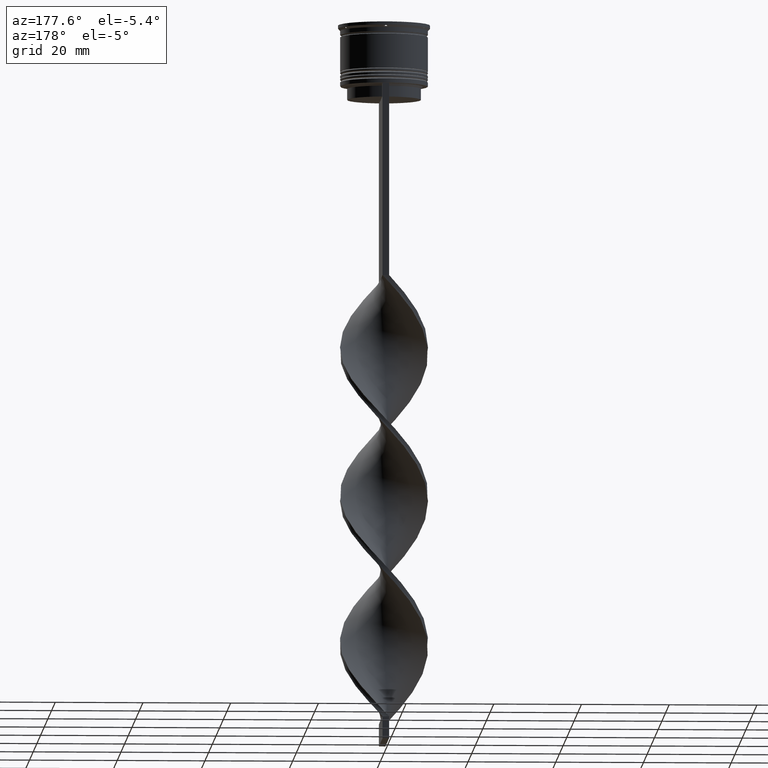
[diagram: clean part render]
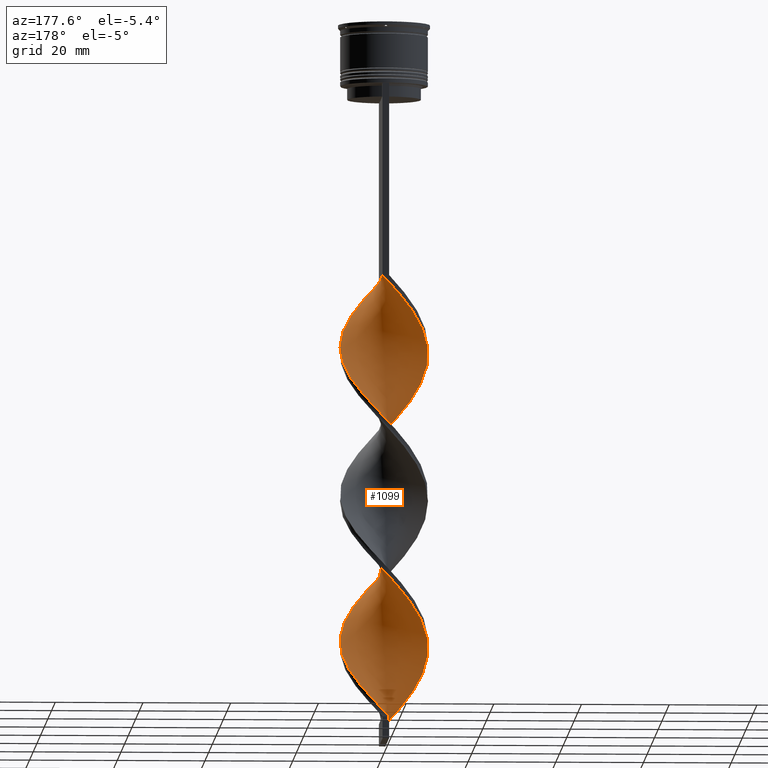
[diagram: same view with one face highlighted and labeled with its STEP entity id]
A machine part, auxiliary view. The second image highlights one B-rep face of the part: STEP entity #1099.
In plain terms, the highlighted face is a freeform B-spline surface patch.
Its self-contained STEP definition (entity closure, byte-faithful):
#14 = CARTESIAN_POINT ( 'NONE',  ( -9.742327908732750785, 2.376877556528111946, -105.1333333333333400 ) ) ;
#33 = CARTESIAN_POINT ( 'NONE',  ( -9.678562416828828674, -2.828220898732835220, -110.7444444444444542 ) ) ;
#36 = CARTESIAN_POINT ( 'NONE',  ( 7.933296209543089006, -6.133947444480539524, -66.97777777777777430 ) ) ;
#55 = CARTESIAN_POINT ( 'NONE',  ( 6.484615268705944402, -7.649331004530123934, -132.0666666666666629 ) ) ;
#84 = CARTESIAN_POINT ( 'NONE',  ( -5.680638183180776402, -8.330891533339581656, -86.05555555555557135 ) ) ;
#99 = CARTESIAN_POINT ( 'NONE',  ( 2.812727608727948247, -9.625542239224740726, -60.24444444444444713 ) ) ;
#102 = CARTESIAN_POINT ( 'NONE',  ( -6.167734941832649476, 7.976995022925432721, -65.85555555555555429 ) ) ;
#117 = CARTESIAN_POINT ( 'NONE',  ( -5.680638183180775513, 8.330891533339592314, -97.27777777777779988 ) ) ;
#121 = CARTESIAN_POINT ( 'NONE',  ( -5.271089777143520116, 8.531008882968830420, -64.73333333333333428 ) ) ;
#127 = CARTESIAN_POINT ( 'NONE',  ( -4.752525523989953982, -8.830402094119154555, -154.5111111111111200 ) ) ;
#139 = CARTESIAN_POINT ( 'NONE',  ( 6.167734941832656581, 7.976995022925434498, -151.1444444444444457 ) ) ;
#147 = CARTESIAN_POINT ( 'NONE',  ( -9.678562416828818016, 2.828220898732843214, -139.9222222222222172 ) ) ;
#165 = CARTESIAN_POINT ( 'NONE',  ( -9.278802417170323835, 3.803462330970839744, -138.8000000000000114 ) ) ;
#171 = CARTESIAN_POINT ( 'NONE',  ( 10.02361530113347854, -0.2993932111503322391, -141.0444444444444514 ) ) ;
#173 = CARTESIAN_POINT ( 'NONE',  ( -9.492508010833708099, -3.400837481082919389, -146.6555555555555657 ) ) ;
#196 = CARTESIAN_POINT ( 'NONE',  ( -9.278802417170330941, -3.803462330970838856, -111.8666666666666742 ) ) ;
#200 = CARTESIAN_POINT ( 'NONE',  ( -1.345506207627238604, 9.937409775451374827, -127.5777777777777828 ) ) ;
#205 = CARTESIAN_POINT ( 'NONE',  ( 0.3010423526567679309, 10.07882817644926376, -157.8777777777777942 ) ) ;
#214 = CARTESIAN_POINT ( 'NONE',  ( -8.879042417511827878, 4.778703763208838495, -70.34444444444444855 ) ) ;
#221 = CARTESIAN_POINT ( 'NONE',  ( -4.374444612454396974, -9.085022743012226343, -119.7222222222222143 ) ) ;
#224 = CARTESIAN_POINT ( 'NONE',  ( -8.879042417511827878, 4.778703763208837607, -137.6777777777777487 ) ) ;
#229 = CARTESIAN_POINT ( 'NONE',  ( 8.879042417511834984, 4.778703763208838495, -146.6555555555555657 ) ) ;
#230 = CARTESIAN_POINT ( 'NONE',  ( 4.374444612454384540, -9.085022743012224566, -97.27777777777779988 ) ) ;
#235 = CARTESIAN_POINT ( 'NONE',  ( -2.812727608727951356, -9.625542239224735397, -89.42222222222223138 ) ) ;
#245 = CARTESIAN_POINT ( 'NONE',  ( 3.382207337526045965, -9.440507058732858781, -96.15555555555556566 ) ) ;
#249 = CARTESIAN_POINT ( 'NONE',  ( 6.929600300004804758, 7.248664682696628780, -150.0222222222222115 ) ) ;
#252 = CARTESIAN_POINT ( 'NONE',  ( 5.271089777143518340, -8.531008882968830420, -98.40000000000001990 ) ) ;
#258 = CARTESIAN_POINT ( 'NONE',  ( -10.02361530113347143, -0.2993932111503279092, -75.95555555555554861 ) ) ;
#270 = CARTESIAN_POINT ( 'NONE',  ( -10.05508279563516005, 0.7541312096726381364, -142.1666666666666856 ) ) ;
#286 = CARTESIAN_POINT ( 'NONE',  ( -7.288592354231108850, -6.967770475720649337, -83.81111111111111711 ) ) ;
#292 = CARTESIAN_POINT ( 'NONE',  ( 10.05508279563516716, 0.7541312096726368042, -74.83333333333334281 ) ) ;
#304 = CARTESIAN_POINT ( 'NONE',  ( -3.824412864799130674, -9.329912654898727453, -88.29999999999998295 ) ) ;
#313 = CARTESIAN_POINT ( 'NONE',  ( -3.382207337526060620, -9.440507058732860557, -120.8444444444444485 ) ) ;
#334 = CARTESIAN_POINT ( 'NONE',  ( -0.7500000000000013323, -9.999999999999998224, -159.0000000000000000 ) ) ;
#356 = CARTESIAN_POINT ( 'NONE',  ( 4.752525523989954870, -8.830402094119163436, -62.48888888888889426 ) ) ;
#377 = CARTESIAN_POINT ( 'NONE',  ( 7.288592354231111514, -6.967770475720657330, -65.85555555555555429 ) ) ;
#397 = CARTESIAN_POINT ( 'NONE',  ( 5.680638183180777290, -8.330891533339590538, -130.9444444444444287 ) ) ;
#399 = CARTESIAN_POINT ( 'NONE',  ( 1.345506207627244155, 9.937409775451381932, -89.42222222222223138 ) ) ;
#402 = CARTESIAN_POINT ( 'NONE',  ( -1.345506207627238604, 9.937409775451374827, -60.24444444444444713 ) ) ;
#408 = DIRECTION ( 'NONE',  ( 0.000000000000000000, 1.000000000000000000, 0.000000000000000000 ) ) ;
#437 = CARTESIAN_POINT ( 'NONE',  ( -7.691465658176945830, 6.520334342467821287, -68.10000000000002274 ) ) ;
#469 = CARTESIAN_POINT ( 'NONE',  ( -9.035254037844390851, 4.350480947161678102, -102.8888888888888857 ) ) ;
#473 = CARTESIAN_POINT ( 'NONE',  ( -9.742327908732745456, -2.376877556528107949, -78.20000000000000284 ) ) ;
#475 = ORIENTED_EDGE ( 'NONE', *, *, #3384, .F. ) ;
#481 = CARTESIAN_POINT ( 'NONE',  ( 7.691465658176951159, 6.520334342467823951, -148.8999999999999773 ) ) ;
#484 = CARTESIAN_POINT ( 'NONE',  ( -8.285254037844383745, 5.649519052838329891, -136.5555555555555713 ) ) ;
#489 = CARTESIAN_POINT ( 'NONE',  ( 1.345506207627244155, 9.937409775451381932, -156.7555555555555600 ) ) ;
#493 = CARTESIAN_POINT ( 'NONE',  ( -7.933296209543087230, -6.133947444480532418, -150.0222222222222115 ) ) ;
#500 = CARTESIAN_POINT ( 'NONE',  ( 8.578000064855070050, -5.300124413240424381, -135.4333333333333371 ) ) ;
#502 = CARTESIAN_POINT ( 'NONE',  ( -3.382207337526049518, 9.440507058732857004, -62.48888888888889426 ) ) ;
#504 = CARTESIAN_POINT ( 'NONE',  ( 8.879042417511824326, -4.778703763208842936, -104.0111111111111200 ) ) ;
#510 = CARTESIAN_POINT ( 'NONE',  ( 4.374444612454393422, 9.085022743012228119, -153.3888888888889142 ) ) ;
#517 = CARTESIAN_POINT ( 'NONE',  ( -0.7499999999999988898, 10.00000000000000533, -159.0000000000000000 ) ) ;
#523 = CARTESIAN_POINT ( 'NONE',  ( -8.578000064855068274, 5.300124413240425270, -101.7666666666666515 ) ) ;
#526 = CARTESIAN_POINT ( 'NONE',  ( -6.167734941832649476, 7.976995022925432721, -65.85555555555555429 ) ) ;
#528 = CARTESIAN_POINT ( 'NONE',  ( 4.374444612454384540, -9.085022743012224566, -97.27777777777778567 ) ) ;
#533 = CARTESIAN_POINT ( 'NONE',  ( 9.866822606231998805, 1.791176054202738843, -143.2888888888889198 ) ) ;
#536 = CARTESIAN_POINT ( 'NONE',  ( 9.678562416828818016, -2.828220898732846322, -106.2555555555555742 ) ) ;
#548 = CARTESIAN_POINT ( 'NONE',  ( 2.389970062597711831, -9.795991374453492995, -95.03333333333331723 ) ) ;
#564 = CARTESIAN_POINT ( 'NONE',  ( 9.742327908732745456, 2.376877556528106172, -111.8666666666666742 ) ) ;
#569 = CARTESIAN_POINT ( 'NONE',  ( 7.288592354231113291, 6.967770475720644896, -117.4777777777777885 ) ) ;
#586 = CARTESIAN_POINT ( 'NONE',  ( 2.389970062597715827, 9.795991374453498324, -88.29999999999998295 ) ) ;
#594 = CARTESIAN_POINT ( 'NONE',  ( 3.824412864799132450, 9.329912654898727453, -121.9666666666666544 ) ) ;
#608 = CARTESIAN_POINT ( 'NONE',  ( 3.382207337526056179, 9.440507058732862333, -87.17777777777779136 ) ) ;
#625 = CARTESIAN_POINT ( 'NONE',  ( 0.7500000000000001110, -10.00000000000000533, -58.00000000000000000 ) ) ;
#642 = CARTESIAN_POINT ( 'NONE',  ( -2.812727608727946027, 9.625542239224740726, -93.91111111111111143 ) ) ;
#664 = CARTESIAN_POINT ( 'NONE',  ( -5.271089777143526334, -8.531008882968833973, -118.6000000000000085 ) ) ;
#673 = CARTESIAN_POINT ( 'NONE',  ( 1.345506207627235717, -9.937409775451374827, -93.91111111111111143 ) ) ;
#682 = CARTESIAN_POINT ( 'NONE',  ( 6.484615268705944402, -7.649331004530123934, -64.73333333333333428 ) ) ;
#685 = CARTESIAN_POINT ( 'NONE',  ( -10.02361530113347143, -0.2993932111503280202, -75.95555555555554861 ) ) ;
#700 = CARTESIAN_POINT ( 'NONE',  ( 9.492508010833715204, -3.400837481082924718, -70.34444444444444855 ) ) ;
#716 = CARTESIAN_POINT ( 'NONE',  ( 2.389970062597715827, 9.795991374453498324, -88.29999999999998295 ) ) ;
#720 = CARTESIAN_POINT ( 'NONE',  ( -8.285254037844383745, 5.649519052838329891, -69.22222222222222854 ) ) ;
#733 = CARTESIAN_POINT ( 'NONE',  ( 9.492508010833715204, -3.400837481082924718, -137.6777777777777487 ) ) ;
#748 = CARTESIAN_POINT ( 'NONE',  ( -10.05508279563516716, -0.7541312096726355829, -108.5000000000000000 ) ) ;
#751 = CARTESIAN_POINT ( 'NONE',  ( -6.929600300004796765, 7.248664682696627892, -66.97777777777777430 ) ) ;
#772 = CARTESIAN_POINT ( 'NONE',  ( -10.02361530113348032, 0.2993932111503379012, -107.3777777777777942 ) ) ;
#776 = CARTESIAN_POINT ( 'NONE',  ( 9.035254037844389075, 4.350480947161663003, -114.1111111111111285 ) ) ;
#782 = CARTESIAN_POINT ( 'NONE',  ( -6.167734941832649476, 7.976995022925432721, -133.1888888888889255 ) ) ;
#789 = CARTESIAN_POINT ( 'NONE',  ( 8.285254037844390851, 5.649519052838329891, -147.7777777777777715 ) ) ;
#791 = CARTESIAN_POINT ( 'NONE',  ( -1.345506207627238382, 9.937409775451374827, -60.24444444444444713 ) ) ;
#793 = CARTESIAN_POINT ( 'NONE',  ( -5.680638183180776402, -8.330891533339581656, -153.3888888888889142 ) ) ;
#798 = CARTESIAN_POINT ( 'NONE',  ( 8.285254037844390851, 5.649519052838329891, -147.7777777777777715 ) ) ;
#805 = CARTESIAN_POINT ( 'NONE',  ( 9.278802417170330941, 3.803462330970840632, -145.5333333333333599 ) ) ;
#807 = CARTESIAN_POINT ( 'NONE',  ( -4.374444612454386316, 9.085022743012224566, -63.61111111111112137 ) ) ;
#810 = CARTESIAN_POINT ( 'NONE',  ( 10.02361530113347143, 0.2993932111503245785, -109.6222222222222342 ) ) ;
#835 = CARTESIAN_POINT ( 'NONE',  ( -3.824412864799130674, -9.329912654898729230, -155.6333333333333258 ) ) ;
#853 = CARTESIAN_POINT ( 'NONE',  ( -9.992147806631782814, -1.352917631973294510, -144.4111111111111541 ) ) ;
#857 = CARTESIAN_POINT ( 'NONE',  ( 7.933296209543087230, 6.133947444480531530, -116.3555555555555685 ) ) ;
#867 = CARTESIAN_POINT ( 'NONE',  ( 0.7500000000000002220, 9.999999999999998224, -58.00000000000000000 ) ) ;
#878 = CARTESIAN_POINT ( 'NONE',  ( 9.992147806631784590, 1.352917631973288071, -110.7444444444444542 ) ) ;
#894 = CARTESIAN_POINT ( 'NONE',  ( -9.866822606231998805, -1.791176054202735513, -109.6222222222222342 ) ) ;
#907 = CARTESIAN_POINT ( 'NONE',  ( -9.866822606231991699, 1.791176054202741952, -73.71111111111112280 ) ) ;
#910 = EDGE_LOOP ( 'NONE', ( #1968, #1000, #475, #1774 ) ) ;
#915 = CARTESIAN_POINT ( 'NONE',  ( -10.05508279563516716, -0.7541312096726356939, -108.5000000000000000 ) ) ;
#935 = CARTESIAN_POINT ( 'NONE',  ( 8.578000064855068274, -5.300124413240424381, -68.10000000000002274 ) ) ;
#955 = CARTESIAN_POINT ( 'NONE',  ( -7.691465658176951159, -6.520334342467823063, -115.2333333333333343 ) ) ;
#976 = CARTESIAN_POINT ( 'NONE',  ( 7.933296209543089006, -6.133947444480539524, -134.3111111111111313 ) ) ;
#979 = CARTESIAN_POINT ( 'NONE',  ( 5.271089777143525446, 8.531008882968833973, -84.93333333333333712 ) ) ;
#993 = CARTESIAN_POINT ( 'NONE',  ( -2.812727608727946027, 9.625542239224740726, -93.91111111111111143 ) ) ;
#1000 = ORIENTED_EDGE ( 'NONE', *, *, #2897, .T. ) ;
#1011 = CARTESIAN_POINT ( 'NONE',  ( 9.992147806631788143, -1.352917631973299173, -72.58888888888890278 ) ) ;
#1020 = VERTEX_POINT ( 'NONE', #517 ) ;
#1033 = CARTESIAN_POINT ( 'NONE',  ( -8.879042417511836760, -4.778703763208834943, -112.9888888888888943 ) ) ;
#1038 = CARTESIAN_POINT ( 'NONE',  ( -9.278802417170323835, 3.803462330970839300, -71.46666666666668277 ) ) ;
#1043 = CARTESIAN_POINT ( 'NONE',  ( -9.866822606231991699, 1.791176054202741952, -141.0444444444444514 ) ) ;
#1049 = CARTESIAN_POINT ( 'NONE',  ( 8.879042417511834984, 4.778703763208838495, -146.6555555555555657 ) ) ;
#1052 = FACE_OUTER_BOUND ( 'NONE', #910, .T. ) ;
#1059 = CARTESIAN_POINT ( 'NONE',  ( -2.812727608727951356, -9.625542239224735397, -156.7555555555555600 ) ) ;
#1067 = CARTESIAN_POINT ( 'NONE',  ( 3.824412864799132006, -9.329912654898734559, -128.7000000000000171 ) ) ;
#1070 = CARTESIAN_POINT ( 'NONE',  ( -7.933296209543087230, -6.133947444480532418, -82.68888888888889710 ) ) ;
#1084 = VECTOR ( 'NONE', #408, 1000.000000000000000 ) ;
#1089 = CARTESIAN_POINT ( 'NONE',  ( 4.752525523989954870, -8.830402094119163436, -129.8222222222222229 ) ) ;
#1091 = CARTESIAN_POINT ( 'NONE',  ( -0.7500000000000013323, -9.999999999999998224, -91.66666666666667140 ) ) ;
#1097 = CARTESIAN_POINT ( 'NONE',  ( -0.7499999999999988898, 10.00000000000000533, -159.0000000000000000 ) ) ;
#1099 = ADVANCED_FACE ( 'NONE', ( #1052 ), #1433, .T. ) ;
#1101 = CARTESIAN_POINT ( 'NONE',  ( 0.3010423526567678754, 10.07882817644926376, -157.8777777777777942 ) ) ;
#1106 = CARTESIAN_POINT ( 'NONE',  ( -4.752525523989953982, -8.830402094119154555, -154.5111111111111200 ) ) ;
#1110 = CARTESIAN_POINT ( 'NONE',  ( 9.678562416828826898, 2.828220898732840549, -144.4111111111111541 ) ) ;
#1120 = CARTESIAN_POINT ( 'NONE',  ( 0.7500000000000002220, 9.999999999999998224, -58.00000000000000000 ) ) ;
#1122 = CARTESIAN_POINT ( 'NONE',  ( -4.374444612454386316, 9.085022743012224566, -130.9444444444444287 ) ) ;
#1128 = CARTESIAN_POINT ( 'NONE',  ( 6.167734941832655693, 7.976995022925434498, -151.1444444444444457 ) ) ;
#1132 = CARTESIAN_POINT ( 'NONE',  ( 10.05508279563516005, -0.7541312096726393577, -108.5000000000000000 ) ) ;
#1150 = CARTESIAN_POINT ( 'NONE',  ( 2.812727608727952688, 9.625542239224735397, -123.0888888888888886 ) ) ;
#1158 = CARTESIAN_POINT ( 'NONE',  ( -0.7499999999999997780, 3.333333333333337478, -159.0000000000000000 ) ) ;
#1167 = CARTESIAN_POINT ( 'NONE',  ( 7.933296209543089006, -6.133947444480539524, -66.97777777777777430 ) ) ;
#1186 = CARTESIAN_POINT ( 'NONE',  ( 9.035254037844390851, -4.350480947161673662, -69.22222222222222854 ) ) ;
#1208 = CARTESIAN_POINT ( 'NONE',  ( -0.3010423526567735375, -10.07882817644926376, -124.2111111111111370 ) ) ;
#1230 = CARTESIAN_POINT ( 'NONE',  ( 6.167734941832655693, 7.976995022925434498, -83.81111111111111711 ) ) ;
#1247 = CARTESIAN_POINT ( 'NONE',  ( -7.288592354231109738, 6.967770475720659107, -99.52222222222223991 ) ) ;
#1249 = CARTESIAN_POINT ( 'NONE',  ( 9.742327908732750785, -2.376877556528111057, -71.46666666666668277 ) ) ;
#1269 = CARTESIAN_POINT ( 'NONE',  ( 7.288592354231111514, -6.967770475720657330, -133.1888888888889255 ) ) ;
#1272 = CARTESIAN_POINT ( 'NONE',  ( 9.678562416828828674, 2.828220898732840993, -77.07777777777778283 ) ) ;
#1297 = CARTESIAN_POINT ( 'NONE',  ( -0.3010423526567642116, 10.07882817644925666, -59.12222222222222712 ) ) ;
#1312 = CARTESIAN_POINT ( 'NONE',  ( -9.992147806631782814, -1.352917631973294510, -77.07777777777778283 ) ) ;
#1327 = CARTESIAN_POINT ( 'NONE',  ( 7.288592354231111514, -6.967770475720657330, -65.85555555555555429 ) ) ;
#1331 = CARTESIAN_POINT ( 'NONE',  ( -8.879042417511827878, 4.778703763208837607, -70.34444444444443434 ) ) ;
#1350 = CARTESIAN_POINT ( 'NONE',  ( 5.271089777143525446, 8.531008882968833973, -152.2666666666666799 ) ) ;
#1363 = CARTESIAN_POINT ( 'NONE',  ( 9.035254037844390851, -4.350480947161673662, -136.5555555555555713 ) ) ;
#1373 = CARTESIAN_POINT ( 'NONE',  ( -0.7500000000000014433, -9.999999999999998224, -159.0000000000000000 ) ) ;
#1380 = CARTESIAN_POINT ( 'NONE',  ( 9.678562416828828674, 2.828220898732840993, -144.4111111111111256 ) ) ;
#1383 = CARTESIAN_POINT ( 'NONE',  ( -2.812727608727951356, -9.625542239224735397, -156.7555555555555600 ) ) ;
#1390 = EDGE_CURVE ( 'NONE', #2981, #2429, #2650, .T. ) ;
#1403 = CARTESIAN_POINT ( 'NONE',  ( 7.933296209543089006, -6.133947444480539524, -134.3111111111111313 ) ) ;
#1407 = CARTESIAN_POINT ( 'NONE',  ( 8.578000064855064721, 5.300124413240417276, -115.2333333333333343 ) ) ;
#1419 = CARTESIAN_POINT ( 'NONE',  ( -8.578000064855064721, -5.300124413240419052, -81.56666666666666288 ) ) ;
#1425 = CARTESIAN_POINT ( 'NONE',  ( 9.866822606231998805, 1.791176054202738843, -143.2888888888889198 ) ) ;
#1428 = CARTESIAN_POINT ( 'NONE',  ( 7.288592354231113291, 6.967770475720644896, -117.4777777777777885 ) ) ;
#1433 =( BOUNDED_SURFACE ( )  B_SPLINE_SURFACE ( 1, 2, ( 
 ( #2874, #1297, #402, #1632, #3461, #1599, #121, #102, #751, #437, #720, #1331, #1038, #3115, #1960, #3166, #685, #1312, #473, #1672, #1888, #2577, #1070, #1911, #3092, #84, #2521, #3798, #3836, #1994, #1091, #3521, #3503, #548, #245, #528, #1688, #1747, #1703, #3485, #2272, #504, #2662, #2015, #2595, #2353, #810, #3264, #564, #2311, #776, #1407, #2950, #1428, #1448, #2909, #3863, #2933, #1150, #3563, #3226, #2616, #200, #1766, #2888, #1122, #1977, #2293, #1728, #2970, #484, #224, #3185, #2040, #3542, #270, #3818, #853, #2637, #173, #2054, #1472, #2330, #2688, #3886, #793, #1106, #835, #1383, #3204, #334 ),
 ( #625, #2118, #3055, #2789, #356, #2162, #2417, #377, #1167, #935, #1186, #2393, #3328, #3370, #3905, #292, #2099, #3011, #3604, #2373, #2135, #2453, #3581, #1230, #1534, #3311, #608, #586, #3347, #1554, #2772, #2072, #642, #1789, #3630, #1491, #1829, #1247, #3287, #2752, #3029, #1853, #14, #2434, #3646, #915, #894, #33, #3927, #3666, #2994, #955, #3069, #1807, #664, #1571, #313, #1511, #2727, #1208, #2479, #3085, #1593, #2183, #3689, #397, #55, #1269, #976, #3778, #1752, #1981, #3490, #3871, #2937, #3507, #533, #1110, #2643, #229, #798, #2954, #249, #1128, #3209, #510, #3269, #2357, #489, #205, #2334 ) ),
 .UNSPECIFIED., .F., .F., .F. ) 
 B_SPLINE_SURFACE_WITH_KNOTS ( ( 2, 2 ),
 ( 3, 2, 2, 2, 2, 2, 2, 2, 2, 2, 2, 2, 2, 2, 2, 2, 2, 2, 2, 2, 2, 2, 2, 2, 2, 2, 2, 2, 2, 2, 2, 2, 2, 2, 2, 2, 2, 2, 2, 2, 2, 2, 2, 2, 2, 3 ),
 ( 0.000000000000000000, 1.000000000000000000 ),
 ( 0.000000000000000000, 0.01666666666666666644, 0.03333333333333333287, 0.05000000000000000278, 0.06666666666666666574, 0.08333333333333332871, 0.1000000000000000056, 0.1166666666666666685, 0.1333333333333333315, 0.1499999999999999944, 0.1666666666666666574, 0.1833333333333333204, 0.2000000000000000111, 0.2166666666666666741, 0.2333333333333333370, 0.2500000000000000000, 0.2666666666666666630, 0.2833333333333333259, 0.2999999999999999889, 0.3166666666666666519, 0.3333333333333333148, 0.3499999999999999778, 0.3666666666666666408, 0.3833333333333333592, 0.4000000000000000222, 0.4166666666666666852, 0.4333333333333333481, 0.4500000000000000111, 0.4666666666666666741, 0.4833333333333333370, 0.5000000000000000000, 0.5166666666666667185, 0.5333333333333333259, 0.5500000000000000444, 0.5666666666666666519, 0.5833333333333333703, 0.5999999999999999778, 0.6166666666666666963, 0.6333333333333333037, 0.6500000000000000222, 0.6666666666666666297, 0.6833333333333333481, 0.6999999999999999556, 0.7166666666666666741, 0.7333333333333332815, 0.7500000000000000000 ),
 .UNSPECIFIED. ) 
 GEOMETRIC_REPRESENTATION_ITEM ( )  RATIONAL_B_SPLINE_SURFACE ( (
 ( 1.000000000000000000, 0.9945218953682732899, 1.000000000000000000, 0.9945218953682732899, 1.000000000000000000, 0.9945218953682732899, 1.000000000000000000, 0.9945218953682732899, 1.000000000000000000, 0.9945218953682732899, 1.000000000000000000, 0.9945218953682732899, 1.000000000000000000, 0.9945218953682732899, 1.000000000000000000, 0.9945218953682732899, 1.000000000000000000, 0.9945218953682732899, 1.000000000000000000, 0.9945218953682732899, 1.000000000000000000, 0.9945218953682732899, 1.000000000000000000, 0.9945218953682732899, 1.000000000000000000, 0.9945218953682732899, 1.000000000000000000, 0.9945218953682732899, 1.000000000000000000, 0.9945218953682732899, 1.000000000000000000, 0.9945218953682732899, 1.000000000000000000, 0.9945218953682732899, 1.000000000000000000, 0.9945218953682732899, 1.000000000000000000, 0.9945218953682732899, 1.000000000000000000, 0.9945218953682732899, 1.000000000000000000, 0.9945218953682732899, 1.000000000000000000, 0.9945218953682732899, 1.000000000000000000, 0.9945218953682732899, 1.000000000000000000, 0.9945218953682732899, 1.000000000000000000, 0.9945218953682732899, 1.000000000000000000, 0.9945218953682732899, 1.000000000000000000, 0.9945218953682732899, 1.000000000000000000, 0.9945218953682732899, 1.000000000000000000, 0.9945218953682732899, 1.000000000000000000, 0.9945218953682732899, 1.000000000000000000, 0.9945218953682732899, 1.000000000000000000, 0.9945218953682732899, 1.000000000000000000, 0.9945218953682732899, 1.000000000000000000, 0.9945218953682732899, 1.000000000000000000, 0.9945218953682732899, 1.000000000000000000, 0.9945218953682732899, 1.000000000000000000, 0.9945218953682732899, 1.000000000000000000, 0.9945218953682732899, 1.000000000000000000, 0.9945218953682732899, 1.000000000000000000, 0.9945218953682732899, 1.000000000000000000, 0.9945218953682732899, 1.000000000000000000, 0.9945218953682732899, 1.000000000000000000, 0.9945218953682732899, 1.000000000000000000, 0.9945218953682732899, 1.000000000000000000, 0.9945218953682732899, 1.000000000000000000),
 ( 1.000000000000000000, 0.9945218953682732899, 1.000000000000000000, 0.9945218953682732899, 1.000000000000000000, 0.9945218953682732899, 1.000000000000000000, 0.9945218953682732899, 1.000000000000000000, 0.9945218953682732899, 1.000000000000000000, 0.9945218953682732899, 1.000000000000000000, 0.9945218953682732899, 1.000000000000000000, 0.9945218953682732899, 1.000000000000000000, 0.9945218953682732899, 1.000000000000000000, 0.9945218953682732899, 1.000000000000000000, 0.9945218953682732899, 1.000000000000000000, 0.9945218953682732899, 1.000000000000000000, 0.9945218953682732899, 1.000000000000000000, 0.9945218953682732899, 1.000000000000000000, 0.9945218953682732899, 1.000000000000000000, 0.9945218953682732899, 1.000000000000000000, 0.9945218953682732899, 1.000000000000000000, 0.9945218953682732899, 1.000000000000000000, 0.9945218953682732899, 1.000000000000000000, 0.9945218953682732899, 1.000000000000000000, 0.9945218953682732899, 1.000000000000000000, 0.9945218953682732899, 1.000000000000000000, 0.9945218953682732899, 1.000000000000000000, 0.9945218953682732899, 1.000000000000000000, 0.9945218953682732899, 1.000000000000000000, 0.9945218953682732899, 1.000000000000000000, 0.9945218953682732899, 1.000000000000000000, 0.9945218953682732899, 1.000000000000000000, 0.9945218953682732899, 1.000000000000000000, 0.9945218953682732899, 1.000000000000000000, 0.9945218953682732899, 1.000000000000000000, 0.9945218953682732899, 1.000000000000000000, 0.9945218953682732899, 1.000000000000000000, 0.9945218953682732899, 1.000000000000000000, 0.9945218953682732899, 1.000000000000000000, 0.9945218953682732899, 1.000000000000000000, 0.9945218953682732899, 1.000000000000000000, 0.9945218953682732899, 1.000000000000000000, 0.9945218953682732899, 1.000000000000000000, 0.9945218953682732899, 1.000000000000000000, 0.9945218953682732899, 1.000000000000000000, 0.9945218953682732899, 1.000000000000000000, 0.9945218953682732899, 1.000000000000000000, 0.9945218953682732899, 1.000000000000000000, 0.9945218953682732899, 1.000000000000000000) ) ) 
 REPRESENTATION_ITEM ( '' )  SURFACE ( )  );
#1434 = CARTESIAN_POINT ( 'NONE',  ( 6.167734941832646811, -7.976995022925432721, -99.52222222222223991 ) ) ;
#1448 = CARTESIAN_POINT ( 'NONE',  ( 6.484615268705942626, 7.649331004530116829, -118.6000000000000085 ) ) ;
#1472 = CARTESIAN_POINT ( 'NONE',  ( -8.578000064855064721, -5.300124413240419052, -148.8999999999999488 ) ) ;
#1484 = CARTESIAN_POINT ( 'NONE',  ( -6.484615268705941737, -7.649331004530116829, -84.93333333333333712 ) ) ;
#1491 = CARTESIAN_POINT ( 'NONE',  ( -5.680638183180775513, 8.330891533339592314, -97.27777777777778567 ) ) ;
#1511 = CARTESIAN_POINT ( 'NONE',  ( -2.389970062597717604, -9.795991374453498324, -121.9666666666666544 ) ) ;
#1534 = CARTESIAN_POINT ( 'NONE',  ( 5.271089777143525446, 8.531008882968833973, -84.93333333333333712 ) ) ;
#1554 = CARTESIAN_POINT ( 'NONE',  ( 0.3010423526567679309, 10.07882817644926376, -90.54444444444445139 ) ) ;
#1559 = CARTESIAN_POINT ( 'NONE',  ( 0.7500000000000001110, -10.00000000000000533, -58.00000000000000000 ) ) ;
#1571 = CARTESIAN_POINT ( 'NONE',  ( -4.374444612454396086, -9.085022743012226343, -119.7222222222222143 ) ) ;
#1584 = CARTESIAN_POINT ( 'NONE',  ( 2.389970062597711831, -9.795991374453492995, -95.03333333333331723 ) ) ;
#1593 = CARTESIAN_POINT ( 'NONE',  ( 2.812727608727948247, -9.625542239224740726, -127.5777777777777828 ) ) ;
#1596 = CARTESIAN_POINT ( 'NONE',  ( 0.7500000000000001110, -10.00000000000000533, -58.00000000000000000 ) ) ;
#1599 = CARTESIAN_POINT ( 'NONE',  ( -4.374444612454386316, 9.085022743012224566, -63.61111111111111427 ) ) ;
#1629 = CARTESIAN_POINT ( 'NONE',  ( -1.801042352656761381, 9.921171823550750446, -92.78888888888889142 ) ) ;
#1632 = CARTESIAN_POINT ( 'NONE',  ( -2.389970062597713163, 9.795991374453491218, -61.36666666666666003 ) ) ;
#1670 = CARTESIAN_POINT ( 'NONE',  ( -7.933296209543089006, 6.133947444480543076, -100.6444444444444599 ) ) ;
#1672 = CARTESIAN_POINT ( 'NONE',  ( -9.492508010833708099, -3.400837481082919389, -79.32222222222222285 ) ) ;
#1676 = CARTESIAN_POINT ( 'NONE',  ( -1.801042352656767154, -9.921171823550741564, -157.8777777777777942 ) ) ;
#1684 = CARTESIAN_POINT ( 'NONE',  ( -9.492508010833711651, 3.400837481082930491, -104.0111111111111057 ) ) ;
#1688 = CARTESIAN_POINT ( 'NONE',  ( 5.271089777143518340, -8.531008882968828644, -98.40000000000001990 ) ) ;
#1699 = CARTESIAN_POINT ( 'NONE',  ( 2.389970062597715827, 9.795991374453498324, -155.6333333333333542 ) ) ;
#1703 = CARTESIAN_POINT ( 'NONE',  ( 6.929600300004795876, -7.248664682696628780, -100.6444444444444599 ) ) ;
#1725 = CARTESIAN_POINT ( 'NONE',  ( -7.691465658176951159, -6.520334342467823063, -115.2333333333333343 ) ) ;
#1728 = CARTESIAN_POINT ( 'NONE',  ( -6.929600300004796765, 7.248664682696627892, -134.3111111111111313 ) ) ;
#1733 = B_SPLINE_CURVE_WITH_KNOTS ( 'NONE', 3,
 ( #2922, #2303, #1158, #1097 ),
 .UNSPECIFIED., .F., .F.,
 ( 4, 4 ),
 ( 0.000000000000000000, 1.000000000000000000 ),
 .UNSPECIFIED. ) ;
#1739 = CARTESIAN_POINT ( 'NONE',  ( -4.752525523989953982, -8.830402094119154555, -87.17777777777779136 ) ) ;
#1747 = CARTESIAN_POINT ( 'NONE',  ( 6.167734941832646811, -7.976995022925432721, -99.52222222222223991 ) ) ;
#1752 = CARTESIAN_POINT ( 'NONE',  ( 9.035254037844390851, -4.350480947161673662, -136.5555555555555713 ) ) ;
#1753 = CARTESIAN_POINT ( 'NONE',  ( 9.035254037844389075, 4.350480947161663003, -114.1111111111111285 ) ) ;
#1766 = CARTESIAN_POINT ( 'NONE',  ( -2.389970062597713163, 9.795991374453491218, -128.6999999999999886 ) ) ;
#1774 = ORIENTED_EDGE ( 'NONE', *, *, #1390, .F. ) ;
#1779 = CARTESIAN_POINT ( 'NONE',  ( -9.992147806631782814, -1.352917631973294288, -77.07777777777778283 ) ) ;
#1789 = CARTESIAN_POINT ( 'NONE',  ( -3.824412864799130674, 9.329912654898738111, -95.03333333333331723 ) ) ;
#1796 = CARTESIAN_POINT ( 'NONE',  ( 2.812727608727952688, 9.625542239224735397, -123.0888888888888886 ) ) ;
#1807 = CARTESIAN_POINT ( 'NONE',  ( -6.167734941832660134, -7.976995022925430945, -117.4777777777777885 ) ) ;
#1829 = CARTESIAN_POINT ( 'NONE',  ( -6.484615268705943514, 7.649331004530123934, -98.40000000000001990 ) ) ;
#1853 = CARTESIAN_POINT ( 'NONE',  ( -9.492508010833709875, 3.400837481082930491, -104.0111111111111200 ) ) ;
#1886 = CARTESIAN_POINT ( 'NONE',  ( 4.374444612454394310, 9.085022743012228119, -86.05555555555557135 ) ) ;
#1888 = CARTESIAN_POINT ( 'NONE',  ( -9.035254037844387298, -4.350480947161667444, -80.44444444444445708 ) ) ;
#1911 = CARTESIAN_POINT ( 'NONE',  ( -7.288592354231108850, -6.967770475720650225, -83.81111111111111711 ) ) ;
#1926 = CARTESIAN_POINT ( 'NONE',  ( -0.7499999999999988898, 10.00000000000000533, -91.66666666666667140 ) ) ;
#1935 = CARTESIAN_POINT ( 'NONE',  ( -8.578000064855064721, -5.300124413240419052, -148.8999999999999773 ) ) ;
#1942 = CARTESIAN_POINT ( 'NONE',  ( 9.742327908732750785, -2.376877556528111057, -138.8000000000000114 ) ) ;
#1956 = CARTESIAN_POINT ( 'NONE',  ( -6.929600300004805646, -7.248664682696627892, -116.3555555555555685 ) ) ;
#1960 = CARTESIAN_POINT ( 'NONE',  ( -9.866822606231991699, 1.791176054202741730, -73.71111111111112280 ) ) ;
#1968 = ORIENTED_EDGE ( 'NONE', *, *, #1995, .F. ) ;
#1974 = CARTESIAN_POINT ( 'NONE',  ( 1.801042352656765155, -9.921171823550748670, -126.4555555555555770 ) ) ;
#1977 = CARTESIAN_POINT ( 'NONE',  ( -5.271089777143520116, 8.531008882968830420, -132.0666666666666629 ) ) ;
#1981 = CARTESIAN_POINT ( 'NONE',  ( 9.492508010833713428, -3.400837481082924718, -137.6777777777777487 ) ) ;
#1984 = CARTESIAN_POINT ( 'NONE',  ( 0.7500000000000001110, -10.00000000000000533, -58.00000000000000000 ) ) ;
#1990 = CARTESIAN_POINT ( 'NONE',  ( 4.374444612454394310, 9.085022743012228119, -153.3888888888889142 ) ) ;
#1992 = CARTESIAN_POINT ( 'NONE',  ( -2.389970062597713163, 9.795991374453491218, -61.36666666666666003 ) ) ;
#1994 = CARTESIAN_POINT ( 'NONE',  ( -1.801042352656766932, -9.921171823550739788, -90.54444444444445139 ) ) ;
#1995 = EDGE_CURVE ( 'NONE', #3363, #2981, #3718, .T. ) ;
#2007 = CARTESIAN_POINT ( 'NONE',  ( -2.389970062597713163, 9.795991374453491218, -128.7000000000000171 ) ) ;
#2015 = CARTESIAN_POINT ( 'NONE',  ( 9.678562416828818016, -2.828220898732845878, -106.2555555555555742 ) ) ;
#2023 = CARTESIAN_POINT ( 'NONE',  ( 9.278802417170323835, -3.803462330970840632, -105.1333333333333400 ) ) ;
#2040 = CARTESIAN_POINT ( 'NONE',  ( -9.678562416828818016, 2.828220898732842770, -139.9222222222222172 ) ) ;
#2054 = CARTESIAN_POINT ( 'NONE',  ( -9.035254037844387298, -4.350480947161667444, -147.7777777777777715 ) ) ;
#2072 = CARTESIAN_POINT ( 'NONE',  ( -1.801042352656761159, 9.921171823550748670, -92.78888888888889142 ) ) ;
#2081 = CARTESIAN_POINT ( 'NONE',  ( 7.691465658176943165, -6.520334342467822175, -101.7666666666666515 ) ) ;
#2099 = CARTESIAN_POINT ( 'NONE',  ( 9.866822606231998805, 1.791176054202738843, -75.95555555555554861 ) ) ;
#2118 = CARTESIAN_POINT ( 'NONE',  ( 1.801042352656765155, -9.921171823550746893, -59.12222222222222712 ) ) ;
#2135 = CARTESIAN_POINT ( 'NONE',  ( 8.285254037844390851, 5.649519052838329891, -80.44444444444445708 ) ) ;
#2162 = CARTESIAN_POINT ( 'NONE',  ( 5.680638183180777290, -8.330891533339590538, -63.61111111111111427 ) ) ;
#2166 = CARTESIAN_POINT ( 'NONE',  ( 10.02361530113347854, -0.2993932111503322391, -73.71111111111112280 ) ) ;
#2183 = CARTESIAN_POINT ( 'NONE',  ( 3.824412864799132006, -9.329912654898736335, -128.6999999999999886 ) ) ;
#2186 = CARTESIAN_POINT ( 'NONE',  ( 9.035254037844390851, -4.350480947161673662, -69.22222222222222854 ) ) ;
#2199 = CARTESIAN_POINT ( 'NONE',  ( -4.752525523989951317, 8.830402094119165213, -96.15555555555556566 ) ) ;
#2219 = CARTESIAN_POINT ( 'NONE',  ( 3.382207337526056179, 9.440507058732862333, -87.17777777777779136 ) ) ;
#2239 = CARTESIAN_POINT ( 'NONE',  ( -2.389970062597717604, -9.795991374453498324, -121.9666666666666544 ) ) ;
#2252 = CARTESIAN_POINT ( 'NONE',  ( 6.929600300004804758, 7.248664682696628780, -150.0222222222222115 ) ) ;
#2270 = CARTESIAN_POINT ( 'NONE',  ( -7.288592354231109738, 6.967770475720659107, -99.52222222222223991 ) ) ;
#2272 = CARTESIAN_POINT ( 'NONE',  ( 8.285254037844381969, -5.649519052838332556, -102.8888888888888857 ) ) ;
#2282 = CARTESIAN_POINT ( 'NONE',  ( -6.929600300004796765, 7.248664682696627892, -134.3111111111111313 ) ) ;
#2290 = CARTESIAN_POINT ( 'NONE',  ( -9.992147806631788143, 1.352917631973302282, -106.2555555555555742 ) ) ;
#2293 = CARTESIAN_POINT ( 'NONE',  ( -6.167734941832649476, 7.976995022925432721, -133.1888888888889255 ) ) ;
#2301 = CARTESIAN_POINT ( 'NONE',  ( -8.879042417511827878, 4.778703763208838495, -137.6777777777777487 ) ) ;
#2303 = CARTESIAN_POINT ( 'NONE',  ( -0.7500000000000005551, -3.333333333333330373, -159.0000000000000000 ) ) ;
#2308 = CARTESIAN_POINT ( 'NONE',  ( -5.271089777143526334, -8.531008882968833973, -118.6000000000000085 ) ) ;
#2311 = CARTESIAN_POINT ( 'NONE',  ( 9.492508010833709875, 3.400837481082915836, -112.9888888888888943 ) ) ;
#2317 = CARTESIAN_POINT ( 'NONE',  ( -10.05508279563516005, 0.7541312096726382475, -142.1666666666666856 ) ) ;
#2330 = CARTESIAN_POINT ( 'NONE',  ( -7.933296209543087230, -6.133947444480532418, -150.0222222222222115 ) ) ;
#2334 = CARTESIAN_POINT ( 'NONE',  ( -0.7499999999999988898, 10.00000000000000533, -159.0000000000000000 ) ) ;
#2353 = CARTESIAN_POINT ( 'NONE',  ( 10.05508279563516005, -0.7541312096726393577, -108.5000000000000000 ) ) ;
#2357 = CARTESIAN_POINT ( 'NONE',  ( 2.389970062597715827, 9.795991374453498324, -155.6333333333333258 ) ) ;
#2359 = CARTESIAN_POINT ( 'NONE',  ( 10.02361530113347143, 0.2993932111503244675, -109.6222222222222342 ) ) ;
#2365 = CARTESIAN_POINT ( 'NONE',  ( -9.035254037844387298, -4.350480947161667444, -80.44444444444445708 ) ) ;
#2371 = CARTESIAN_POINT ( 'NONE',  ( -0.3010423526567641006, 10.07882817644925666, -59.12222222222222712 ) ) ;
#2373 = CARTESIAN_POINT ( 'NONE',  ( 8.879042417511834984, 4.778703763208838495, -79.32222222222222285 ) ) ;
#2393 = CARTESIAN_POINT ( 'NONE',  ( 9.492508010833713428, -3.400837481082924718, -70.34444444444443434 ) ) ;
#2417 = CARTESIAN_POINT ( 'NONE',  ( 6.484615268705944402, -7.649331004530123934, -64.73333333333333428 ) ) ;
#2429 = VERTEX_POINT ( 'NONE', #3449 ) ;
#2434 = CARTESIAN_POINT ( 'NONE',  ( -9.992147806631789919, 1.352917631973302282, -106.2555555555555742 ) ) ;
#2453 = CARTESIAN_POINT ( 'NONE',  ( 7.691465658176951159, 6.520334342467823951, -81.56666666666664867 ) ) ;
#2455 = CARTESIAN_POINT ( 'NONE',  ( 10.05508279563516716, 0.7541312096726368042, -74.83333333333332860 ) ) ;
#2479 = CARTESIAN_POINT ( 'NONE',  ( 0.7500000000000001110, -10.00000000000000533, -125.3333333333333570 ) ) ;
#2482 = CARTESIAN_POINT ( 'NONE',  ( 9.278802417170330941, 3.803462330970840632, -78.20000000000000284 ) ) ;
#2518 = CARTESIAN_POINT ( 'NONE',  ( 4.752525523989954870, -8.830402094119163436, -62.48888888888889426 ) ) ;
#2521 = CARTESIAN_POINT ( 'NONE',  ( -4.752525523989953982, -8.830402094119154555, -87.17777777777779136 ) ) ;
#2540 = CARTESIAN_POINT ( 'NONE',  ( -6.484615268705943514, 7.649331004530123934, -98.40000000000001990 ) ) ;
#2551 = CARTESIAN_POINT ( 'NONE',  ( -9.992147806631782814, -1.352917631973294288, -144.4111111111111256 ) ) ;
#2558 = CARTESIAN_POINT ( 'NONE',  ( -0.3010423526567735375, -10.07882817644926376, -124.2111111111111370 ) ) ;
#2566 = CARTESIAN_POINT ( 'NONE',  ( -5.680638183180776402, -8.330891533339583432, -153.3888888888889142 ) ) ;
#2577 = CARTESIAN_POINT ( 'NONE',  ( -8.578000064855064721, -5.300124413240419052, -81.56666666666664867 ) ) ;
#2593 = CARTESIAN_POINT ( 'NONE',  ( -9.742327908732750785, 2.376877556528111946, -105.1333333333333400 ) ) ;
#2595 = CARTESIAN_POINT ( 'NONE',  ( 9.866822606231989923, -1.791176054202747281, -107.3777777777777942 ) ) ;
#2613 = CARTESIAN_POINT ( 'NONE',  ( -6.167734941832661022, -7.976995022925430945, -117.4777777777777885 ) ) ;
#2616 = CARTESIAN_POINT ( 'NONE',  ( -0.3010423526567642116, 10.07882817644925666, -126.4555555555555628 ) ) ;
#2632 = CARTESIAN_POINT ( 'NONE',  ( 3.382207337526056179, 9.440507058732862333, -154.5111111111111200 ) ) ;
#2637 = CARTESIAN_POINT ( 'NONE',  ( -9.742327908732745456, -2.376877556528107949, -145.5333333333333599 ) ) ;
#2643 = CARTESIAN_POINT ( 'NONE',  ( 9.278802417170330941, 3.803462330970840632, -145.5333333333333599 ) ) ;
#2645 = CARTESIAN_POINT ( 'NONE',  ( 3.382207337526045965, -9.440507058732858781, -96.15555555555556566 ) ) ;
#2650 =( BOUNDED_CURVE ( )  B_SPLINE_CURVE ( 2, ( #1120, #2371, #791, #1992, #502, #807, #2907, #526, #3619, #3275, #2925, #214, #3239, #2699, #907, #2960, #258, #1779, #3591, #2985, #2365, #1419, #2679, #286, #1484, #3534, #1739, #304, #235, #2716, #3916, #3045, #673, #1584, #2645, #230, #252, #1434, #3892, #2081, #2918, #3875, #2023, #536, #3845, #1132, #2359, #878, #3251, #3568, #1753, #3295, #857, #569, #2955, #2977, #2693, #594, #1796, #3000, #2711, #3910, #3228, #2007, #3219, #3782, #3174, #782, #2282, #2866, #3808, #2301, #165, #147, #1043, #2317, #2920, #2551, #3468, #3193, #3528, #1935, #493, #3135, #2894, #2566, #127, #3752, #1059, #1676, #1373 ),
 .UNSPECIFIED., .F., .T. ) 
 B_SPLINE_CURVE_WITH_KNOTS ( ( 3, 2, 2, 2, 2, 2, 2, 2, 2, 2, 2, 2, 2, 2, 2, 2, 2, 2, 2, 2, 2, 2, 2, 2, 2, 2, 2, 2, 2, 2, 2, 2, 2, 2, 2, 2, 2, 2, 2, 2, 2, 2, 2, 2, 2, 3 ),
 ( 0.000000000000000000, 0.01666666666666666644, 0.03333333333333333287, 0.05000000000000000971, 0.06666666666666666574, 0.08333333333333332871, 0.1000000000000000194, 0.1166666666666666546, 0.1333333333333333315, 0.1499999999999999944, 0.1666666666666666574, 0.1833333333333333204, 0.2000000000000000389, 0.2166666666666666741, 0.2333333333333333093, 0.2500000000000000000, 0.2666666666666666630, 0.2833333333333333259, 0.2999999999999999889, 0.3166666666666666519, 0.3333333333333333148, 0.3499999999999999223, 0.3666666666666666408, 0.3833333333333333592, 0.4000000000000000777, 0.4166666666666666852, 0.4333333333333333481, 0.4500000000000000111, 0.4666666666666666186, 0.4833333333333333370, 0.5000000000000000000, 0.5166666666666667185, 0.5333333333333333259, 0.5500000000000000444, 0.5666666666666666519, 0.5833333333333333703, 0.5999999999999999778, 0.6166666666666666963, 0.6333333333333333037, 0.6500000000000000222, 0.6666666666666666297, 0.6833333333333332371, 0.6999999999999998446, 0.7166666666666666741, 0.7333333333333332815, 0.7500000000000000000 ),
 .UNSPECIFIED. ) 
 CURVE ( )  GEOMETRIC_REPRESENTATION_ITEM ( )  RATIONAL_B_SPLINE_CURVE ( ( 1.000000000000000000, 0.9945218953682732899, 1.000000000000000000, 0.9945218953682732899, 1.000000000000000000, 0.9945218953682732899, 1.000000000000000000, 0.9945218953682732899, 1.000000000000000000, 0.9945218953682732899, 1.000000000000000000, 0.9945218953682732899, 1.000000000000000000, 0.9945218953682732899, 1.000000000000000000, 0.9945218953682732899, 1.000000000000000000, 0.9945218953682732899, 1.000000000000000000, 0.9945218953682732899, 1.000000000000000000, 0.9945218953682732899, 1.000000000000000000, 0.9945218953682732899, 1.000000000000000000, 0.9945218953682732899, 1.000000000000000000, 0.9945218953682732899, 1.000000000000000000, 0.9945218953682732899, 1.000000000000000000, 0.9945218953682732899, 1.000000000000000000, 0.9945218953682732899, 1.000000000000000000, 0.9945218953682732899, 1.000000000000000000, 0.9945218953682732899, 1.000000000000000000, 0.9945218953682732899, 1.000000000000000000, 0.9945218953682732899, 1.000000000000000000, 0.9945218953682732899, 1.000000000000000000, 0.9945218953682732899, 1.000000000000000000, 0.9945218953682732899, 1.000000000000000000, 0.9945218953682732899, 1.000000000000000000, 0.9945218953682732899, 1.000000000000000000, 0.9945218953682732899, 1.000000000000000000, 0.9945218953682732899, 1.000000000000000000, 0.9945218953682732899, 1.000000000000000000, 0.9945218953682732899, 1.000000000000000000, 0.9945218953682732899, 1.000000000000000000, 0.9945218953682732899, 1.000000000000000000, 0.9945218953682732899, 1.000000000000000000, 0.9945218953682732899, 1.000000000000000000, 0.9945218953682732899, 1.000000000000000000, 0.9945218953682732899, 1.000000000000000000, 0.9945218953682732899, 1.000000000000000000, 0.9945218953682732899, 1.000000000000000000, 0.9945218953682732899, 1.000000000000000000, 0.9945218953682732899, 1.000000000000000000, 0.9945218953682732899, 1.000000000000000000, 0.9945218953682732899, 1.000000000000000000, 0.9945218953682732899, 1.000000000000000000, 0.9945218953682732899, 1.000000000000000000, 0.9945218953682732899, 1.000000000000000000 ) ) 
 REPRESENTATION_ITEM ( '' )  );
#2662 = CARTESIAN_POINT ( 'NONE',  ( 9.278802417170323835, -3.803462330970840188, -105.1333333333333400 ) ) ;
#2679 = CARTESIAN_POINT ( 'NONE',  ( -7.933296209543087230, -6.133947444480532418, -82.68888888888889710 ) ) ;
#2688 = CARTESIAN_POINT ( 'NONE',  ( -7.288592354231108850, -6.967770475720650225, -151.1444444444444457 ) ) ;
#2693 = CARTESIAN_POINT ( 'NONE',  ( 4.752525523989959311, 8.830402094119152778, -120.8444444444444485 ) ) ;
#2699 = CARTESIAN_POINT ( 'NONE',  ( -9.678562416828818016, 2.828220898732843214, -72.58888888888890278 ) ) ;
#2711 = CARTESIAN_POINT ( 'NONE',  ( 0.7500000000000002220, 9.999999999999998224, -125.3333333333333570 ) ) ;
#2716 = CARTESIAN_POINT ( 'NONE',  ( -1.801042352656767154, -9.921171823550741564, -90.54444444444445139 ) ) ;
#2727 = CARTESIAN_POINT ( 'NONE',  ( -1.345506207627245487, -9.937409775451381932, -123.0888888888888886 ) ) ;
#2752 = CARTESIAN_POINT ( 'NONE',  ( -8.578000064855068274, 5.300124413240425270, -101.7666666666666515 ) ) ;
#2772 = CARTESIAN_POINT ( 'NONE',  ( -0.7499999999999988898, 10.00000000000000533, -91.66666666666667140 ) ) ;
#2789 = CARTESIAN_POINT ( 'NONE',  ( 3.824412864799132006, -9.329912654898736335, -61.36666666666666003 ) ) ;
#2791 = CARTESIAN_POINT ( 'NONE',  ( 9.866822606231998805, 1.791176054202738843, -75.95555555555554861 ) ) ;
#2809 = CARTESIAN_POINT ( 'NONE',  ( 0.3010423526567678754, 10.07882817644926376, -90.54444444444445139 ) ) ;
#2839 = CARTESIAN_POINT ( 'NONE',  ( -3.824412864799130674, 9.329912654898736335, -95.03333333333331723 ) ) ;
#2866 = CARTESIAN_POINT ( 'NONE',  ( -7.691465658176945830, 6.520334342467821287, -135.4333333333333371 ) ) ;
#2874 = CARTESIAN_POINT ( 'NONE',  ( 0.7500000000000001110, 9.999999999999998224, -58.00000000000000000 ) ) ;
#2886 = CARTESIAN_POINT ( 'NONE',  ( -9.866822606231998805, -1.791176054202735513, -109.6222222222222342 ) ) ;
#2888 = CARTESIAN_POINT ( 'NONE',  ( -3.382207337526049962, 9.440507058732857004, -129.8222222222222229 ) ) ;
#2894 = CARTESIAN_POINT ( 'NONE',  ( -6.484615268705941737, -7.649331004530116829, -152.2666666666666799 ) ) ;
#2897 = EDGE_CURVE ( 'NONE', #3363, #1020, #2944, .T. ) ;
#2905 = CARTESIAN_POINT ( 'NONE',  ( -8.285254037844394404, -5.649519052838325450, -114.1111111111111285 ) ) ;
#2907 = CARTESIAN_POINT ( 'NONE',  ( -5.271089777143520116, 8.531008882968830420, -64.73333333333333428 ) ) ;
#2909 = CARTESIAN_POINT ( 'NONE',  ( 5.680638183180778178, 8.330891533339581656, -119.7222222222222143 ) ) ;
#2918 = CARTESIAN_POINT ( 'NONE',  ( 8.285254037844381969, -5.649519052838333444, -102.8888888888888857 ) ) ;
#2920 = CARTESIAN_POINT ( 'NONE',  ( -10.02361530113347143, -0.2993932111503279092, -143.2888888888889198 ) ) ;
#2922 = CARTESIAN_POINT ( 'NONE',  ( -0.7500000000000014433, -9.999999999999998224, -159.0000000000000000 ) ) ;
#2925 = CARTESIAN_POINT ( 'NONE',  ( -8.285254037844383745, 5.649519052838329891, -69.22222222222222854 ) ) ;
#2930 = CARTESIAN_POINT ( 'NONE',  ( 9.992147806631788143, -1.352917631973299173, -139.9222222222222172 ) ) ;
#2933 = CARTESIAN_POINT ( 'NONE',  ( 3.824412864799132450, 9.329912654898729230, -121.9666666666666544 ) ) ;
#2937 = CARTESIAN_POINT ( 'NONE',  ( 10.02361530113347854, -0.2993932111503322391, -141.0444444444444514 ) ) ;
#2944 =( BOUNDED_CURVE ( )  B_SPLINE_CURVE ( 2, ( #1596, #3088, #99, #3743, #2518, #3127, #682, #1327, #36, #3111, #2186, #700, #1249, #1011, #2166, #2455, #2791, #1272, #2482, #3669, #3720, #3691, #3705, #3408, #979, #1886, #2219, #716, #399, #2809, #1926, #1629, #993, #2839, #2199, #117, #2540, #2270, #1670, #523, #469, #1684, #2593, #2290, #772, #748, #2886, #3772, #196, #1033, #2905, #1725, #1956, #2613, #2308, #221, #3795, #2239, #3444, #2558, #3200, #1974, #3481, #1067, #1089, #3163, #3498, #3182, #1403, #500, #1363, #733, #1942, #2930, #171, #3758, #1425, #1380, #805, #1049, #789, #481, #2252, #139, #1350, #1990, #2632, #1699, #3815, #1101, #3518 ),
 .UNSPECIFIED., .F., .T. ) 
 B_SPLINE_CURVE_WITH_KNOTS ( ( 3, 2, 2, 2, 2, 2, 2, 2, 2, 2, 2, 2, 2, 2, 2, 2, 2, 2, 2, 2, 2, 2, 2, 2, 2, 2, 2, 2, 2, 2, 2, 2, 2, 2, 2, 2, 2, 2, 2, 2, 2, 2, 2, 2, 2, 3 ),
 ( 0.000000000000000000, 0.01666666666666666644, 0.03333333333333333287, 0.05000000000000000971, 0.06666666666666666574, 0.08333333333333332871, 0.1000000000000000194, 0.1166666666666666546, 0.1333333333333333315, 0.1499999999999999944, 0.1666666666666666574, 0.1833333333333333204, 0.2000000000000000389, 0.2166666666666666741, 0.2333333333333333093, 0.2500000000000000000, 0.2666666666666666630, 0.2833333333333333259, 0.2999999999999999889, 0.3166666666666666519, 0.3333333333333333148, 0.3499999999999999223, 0.3666666666666666408, 0.3833333333333333592, 0.4000000000000000777, 0.4166666666666666852, 0.4333333333333333481, 0.4500000000000000111, 0.4666666666666666186, 0.4833333333333333370, 0.5000000000000000000, 0.5166666666666667185, 0.5333333333333333259, 0.5500000000000000444, 0.5666666666666666519, 0.5833333333333333703, 0.5999999999999999778, 0.6166666666666666963, 0.6333333333333333037, 0.6500000000000000222, 0.6666666666666666297, 0.6833333333333332371, 0.6999999999999998446, 0.7166666666666666741, 0.7333333333333332815, 0.7500000000000000000 ),
 .UNSPECIFIED. ) 
 CURVE ( )  GEOMETRIC_REPRESENTATION_ITEM ( )  RATIONAL_B_SPLINE_CURVE ( ( 1.000000000000000000, 0.9945218953682732899, 1.000000000000000000, 0.9945218953682732899, 1.000000000000000000, 0.9945218953682732899, 1.000000000000000000, 0.9945218953682732899, 1.000000000000000000, 0.9945218953682732899, 1.000000000000000000, 0.9945218953682732899, 1.000000000000000000, 0.9945218953682732899, 1.000000000000000000, 0.9945218953682732899, 1.000000000000000000, 0.9945218953682732899, 1.000000000000000000, 0.9945218953682732899, 1.000000000000000000, 0.9945218953682732899, 1.000000000000000000, 0.9945218953682732899, 1.000000000000000000, 0.9945218953682732899, 1.000000000000000000, 0.9945218953682732899, 1.000000000000000000, 0.9945218953682732899, 1.000000000000000000, 0.9945218953682732899, 1.000000000000000000, 0.9945218953682732899, 1.000000000000000000, 0.9945218953682732899, 1.000000000000000000, 0.9945218953682732899, 1.000000000000000000, 0.9945218953682732899, 1.000000000000000000, 0.9945218953682732899, 1.000000000000000000, 0.9945218953682732899, 1.000000000000000000, 0.9945218953682732899, 1.000000000000000000, 0.9945218953682732899, 1.000000000000000000, 0.9945218953682732899, 1.000000000000000000, 0.9945218953682732899, 1.000000000000000000, 0.9945218953682732899, 1.000000000000000000, 0.9945218953682732899, 1.000000000000000000, 0.9945218953682732899, 1.000000000000000000, 0.9945218953682732899, 1.000000000000000000, 0.9945218953682732899, 1.000000000000000000, 0.9945218953682732899, 1.000000000000000000, 0.9945218953682732899, 1.000000000000000000, 0.9945218953682732899, 1.000000000000000000, 0.9945218953682732899, 1.000000000000000000, 0.9945218953682732899, 1.000000000000000000, 0.9945218953682732899, 1.000000000000000000, 0.9945218953682732899, 1.000000000000000000, 0.9945218953682732899, 1.000000000000000000, 0.9945218953682732899, 1.000000000000000000, 0.9945218953682732899, 1.000000000000000000, 0.9945218953682732899, 1.000000000000000000, 0.9945218953682732899, 1.000000000000000000, 0.9945218953682732899, 1.000000000000000000, 0.9945218953682732899, 1.000000000000000000 ) ) 
 REPRESENTATION_ITEM ( '' )  );
#2950 = CARTESIAN_POINT ( 'NONE',  ( 7.933296209543087230, 6.133947444480531530, -116.3555555555555685 ) ) ;
#2954 = CARTESIAN_POINT ( 'NONE',  ( 7.691465658176951159, 6.520334342467823951, -148.8999999999999488 ) ) ;
#2955 = CARTESIAN_POINT ( 'NONE',  ( 6.484615268705942626, 7.649331004530116829, -118.6000000000000085 ) ) ;
#2960 = CARTESIAN_POINT ( 'NONE',  ( -10.05508279563516005, 0.7541312096726382475, -74.83333333333332860 ) ) ;
#2970 = CARTESIAN_POINT ( 'NONE',  ( -7.691465658176945830, 6.520334342467821287, -135.4333333333333371 ) ) ;
#2977 = CARTESIAN_POINT ( 'NONE',  ( 5.680638183180778178, 8.330891533339583432, -119.7222222222222143 ) ) ;
#2981 = VERTEX_POINT ( 'NONE', #867 ) ;
#2985 = CARTESIAN_POINT ( 'NONE',  ( -9.492508010833709875, -3.400837481082919389, -79.32222222222222285 ) ) ;
#2994 = CARTESIAN_POINT ( 'NONE',  ( -8.285254037844394404, -5.649519052838325450, -114.1111111111111285 ) ) ;
#3000 = CARTESIAN_POINT ( 'NONE',  ( 1.801042352656772927, 9.921171823550741564, -124.2111111111111370 ) ) ;
#3011 = CARTESIAN_POINT ( 'NONE',  ( 9.678562416828826898, 2.828220898732840549, -77.07777777777778283 ) ) ;
#3029 = CARTESIAN_POINT ( 'NONE',  ( -9.035254037844390851, 4.350480947161678102, -102.8888888888888857 ) ) ;
#3045 = CARTESIAN_POINT ( 'NONE',  ( 0.3010423526567599928, -10.07882817644925844, -92.78888888888889142 ) ) ;
#3055 = CARTESIAN_POINT ( 'NONE',  ( 2.812727608727948247, -9.625542239224740726, -60.24444444444444713 ) ) ;
#3069 = CARTESIAN_POINT ( 'NONE',  ( -6.929600300004805646, -7.248664682696627892, -116.3555555555555685 ) ) ;
#3085 = CARTESIAN_POINT ( 'NONE',  ( 1.801042352656765155, -9.921171823550746893, -126.4555555555555628 ) ) ;
#3088 = CARTESIAN_POINT ( 'NONE',  ( 1.801042352656765155, -9.921171823550748670, -59.12222222222222712 ) ) ;
#3092 = CARTESIAN_POINT ( 'NONE',  ( -6.484615268705941737, -7.649331004530116829, -84.93333333333333712 ) ) ;
#3111 = CARTESIAN_POINT ( 'NONE',  ( 8.578000064855070050, -5.300124413240424381, -68.10000000000000853 ) ) ;
#3115 = CARTESIAN_POINT ( 'NONE',  ( -9.678562416828818016, 2.828220898732842770, -72.58888888888890278 ) ) ;
#3127 = CARTESIAN_POINT ( 'NONE',  ( 5.680638183180777290, -8.330891533339590538, -63.61111111111112137 ) ) ;
#3135 = CARTESIAN_POINT ( 'NONE',  ( -7.288592354231108850, -6.967770475720649337, -151.1444444444444457 ) ) ;
#3163 = CARTESIAN_POINT ( 'NONE',  ( 5.680638183180777290, -8.330891533339590538, -130.9444444444444571 ) ) ;
#3166 = CARTESIAN_POINT ( 'NONE',  ( -10.05508279563516005, 0.7541312096726381364, -74.83333333333334281 ) ) ;
#3174 = CARTESIAN_POINT ( 'NONE',  ( -5.271089777143520116, 8.531008882968830420, -132.0666666666666629 ) ) ;
#3182 = CARTESIAN_POINT ( 'NONE',  ( 7.288592354231111514, -6.967770475720657330, -133.1888888888889255 ) ) ;
#3185 = CARTESIAN_POINT ( 'NONE',  ( -9.278802417170323835, 3.803462330970839300, -138.8000000000000114 ) ) ;
#3193 = CARTESIAN_POINT ( 'NONE',  ( -9.492508010833709875, -3.400837481082919389, -146.6555555555555657 ) ) ;
#3200 = CARTESIAN_POINT ( 'NONE',  ( 0.7500000000000001110, -10.00000000000000533, -125.3333333333333570 ) ) ;
#3204 = CARTESIAN_POINT ( 'NONE',  ( -1.801042352656766932, -9.921171823550739788, -157.8777777777777942 ) ) ;
#3209 = CARTESIAN_POINT ( 'NONE',  ( 5.271089777143525446, 8.531008882968833973, -152.2666666666666799 ) ) ;
#3219 = CARTESIAN_POINT ( 'NONE',  ( -3.382207337526049518, 9.440507058732857004, -129.8222222222222229 ) ) ;
#3226 = CARTESIAN_POINT ( 'NONE',  ( 0.7500000000000001110, 9.999999999999998224, -125.3333333333333570 ) ) ;
#3228 = CARTESIAN_POINT ( 'NONE',  ( -1.345506207627238382, 9.937409775451374827, -127.5777777777777828 ) ) ;
#3239 = CARTESIAN_POINT ( 'NONE',  ( -9.278802417170323835, 3.803462330970839744, -71.46666666666668277 ) ) ;
#3251 = CARTESIAN_POINT ( 'NONE',  ( 9.742327908732745456, 2.376877556528106172, -111.8666666666666742 ) ) ;
#3264 = CARTESIAN_POINT ( 'NONE',  ( 9.992147806631784590, 1.352917631973288515, -110.7444444444444542 ) ) ;
#3269 = CARTESIAN_POINT ( 'NONE',  ( 3.382207337526056179, 9.440507058732862333, -154.5111111111111200 ) ) ;
#3275 = CARTESIAN_POINT ( 'NONE',  ( -7.691465658176945830, 6.520334342467821287, -68.10000000000000853 ) ) ;
#3287 = CARTESIAN_POINT ( 'NONE',  ( -7.933296209543089006, 6.133947444480543076, -100.6444444444444599 ) ) ;
#3295 = CARTESIAN_POINT ( 'NONE',  ( 8.578000064855064721, 5.300124413240417276, -115.2333333333333343 ) ) ;
#3311 = CARTESIAN_POINT ( 'NONE',  ( 4.374444612454393422, 9.085022743012228119, -86.05555555555557135 ) ) ;
#3328 = CARTESIAN_POINT ( 'NONE',  ( 9.742327908732750785, -2.376877556528111057, -71.46666666666668277 ) ) ;
#3347 = CARTESIAN_POINT ( 'NONE',  ( 1.345506207627244155, 9.937409775451381932, -89.42222222222223138 ) ) ;
#3363 = VERTEX_POINT ( 'NONE', #1984 ) ;
#3370 = CARTESIAN_POINT ( 'NONE',  ( 9.992147806631789919, -1.352917631973299173, -72.58888888888890278 ) ) ;
#3384 = EDGE_CURVE ( 'NONE', #2429, #1020, #1733, .T. ) ;
#3408 = CARTESIAN_POINT ( 'NONE',  ( 6.167734941832656581, 7.976995022925434498, -83.81111111111111711 ) ) ;
#3444 = CARTESIAN_POINT ( 'NONE',  ( -1.345506207627245487, -9.937409775451381932, -123.0888888888888886 ) ) ;
#3449 = CARTESIAN_POINT ( 'NONE',  ( -0.7500000000000014433, -9.999999999999998224, -159.0000000000000000 ) ) ;
#3461 = CARTESIAN_POINT ( 'NONE',  ( -3.382207337526049962, 9.440507058732857004, -62.48888888888889426 ) ) ;
#3468 = CARTESIAN_POINT ( 'NONE',  ( -9.742327908732745456, -2.376877556528107505, -145.5333333333333599 ) ) ;
#3481 = CARTESIAN_POINT ( 'NONE',  ( 2.812727608727948247, -9.625542239224740726, -127.5777777777777828 ) ) ;
#3485 = CARTESIAN_POINT ( 'NONE',  ( 7.691465658176944054, -6.520334342467822175, -101.7666666666666515 ) ) ;
#3490 = CARTESIAN_POINT ( 'NONE',  ( 9.742327908732750785, -2.376877556528111057, -138.8000000000000114 ) ) ;
#3498 = CARTESIAN_POINT ( 'NONE',  ( 6.484615268705944402, -7.649331004530123934, -132.0666666666666629 ) ) ;
#3503 = CARTESIAN_POINT ( 'NONE',  ( 1.345506207627235939, -9.937409775451374827, -93.91111111111111143 ) ) ;
#3507 = CARTESIAN_POINT ( 'NONE',  ( 10.05508279563516716, 0.7541312096726368042, -142.1666666666666856 ) ) ;
#3518 = CARTESIAN_POINT ( 'NONE',  ( -0.7499999999999988898, 10.00000000000000533, -159.0000000000000000 ) ) ;
#3521 = CARTESIAN_POINT ( 'NONE',  ( 0.3010423526567601038, -10.07882817644925844, -92.78888888888889142 ) ) ;
#3528 = CARTESIAN_POINT ( 'NONE',  ( -9.035254037844387298, -4.350480947161667444, -147.7777777777777715 ) ) ;
#3534 = CARTESIAN_POINT ( 'NONE',  ( -5.680638183180776402, -8.330891533339583432, -86.05555555555557135 ) ) ;
#3542 = CARTESIAN_POINT ( 'NONE',  ( -9.866822606231991699, 1.791176054202741730, -141.0444444444444514 ) ) ;
#3563 = CARTESIAN_POINT ( 'NONE',  ( 1.801042352656772705, 9.921171823550739788, -124.2111111111111370 ) ) ;
#3568 = CARTESIAN_POINT ( 'NONE',  ( 9.492508010833711651, 3.400837481082915392, -112.9888888888888943 ) ) ;
#3581 = CARTESIAN_POINT ( 'NONE',  ( 6.929600300004804758, 7.248664682696628780, -82.68888888888889710 ) ) ;
#3591 = CARTESIAN_POINT ( 'NONE',  ( -9.742327908732745456, -2.376877556528107505, -78.20000000000000284 ) ) ;
#3604 = CARTESIAN_POINT ( 'NONE',  ( 9.278802417170330941, 3.803462330970840632, -78.20000000000000284 ) ) ;
#3619 = CARTESIAN_POINT ( 'NONE',  ( -6.929600300004796765, 7.248664682696627892, -66.97777777777777430 ) ) ;
#3630 = CARTESIAN_POINT ( 'NONE',  ( -4.752525523989951317, 8.830402094119165213, -96.15555555555556566 ) ) ;
#3646 = CARTESIAN_POINT ( 'NONE',  ( -10.02361530113348032, 0.2993932111503379012, -107.3777777777777942 ) ) ;
#3666 = CARTESIAN_POINT ( 'NONE',  ( -8.879042417511836760, -4.778703763208835831, -112.9888888888888943 ) ) ;
#3669 = CARTESIAN_POINT ( 'NONE',  ( 8.879042417511834984, 4.778703763208838495, -79.32222222222222285 ) ) ;
#3689 = CARTESIAN_POINT ( 'NONE',  ( 4.752525523989954870, -8.830402094119163436, -129.8222222222222229 ) ) ;
#3691 = CARTESIAN_POINT ( 'NONE',  ( 7.691465658176951159, 6.520334342467823951, -81.56666666666666288 ) ) ;
#3705 = CARTESIAN_POINT ( 'NONE',  ( 6.929600300004804758, 7.248664682696628780, -82.68888888888889710 ) ) ;
#3718 = LINE ( 'NONE', #1559, #1084 ) ;
#3720 = CARTESIAN_POINT ( 'NONE',  ( 8.285254037844390851, 5.649519052838329891, -80.44444444444445708 ) ) ;
#3743 = CARTESIAN_POINT ( 'NONE',  ( 3.824412864799132006, -9.329912654898734559, -61.36666666666666003 ) ) ;
#3752 = CARTESIAN_POINT ( 'NONE',  ( -3.824412864799130674, -9.329912654898727453, -155.6333333333333542 ) ) ;
#3758 = CARTESIAN_POINT ( 'NONE',  ( 10.05508279563516716, 0.7541312096726368042, -142.1666666666666856 ) ) ;
#3772 = CARTESIAN_POINT ( 'NONE',  ( -9.678562416828830450, -2.828220898732835220, -110.7444444444444542 ) ) ;
#3778 = CARTESIAN_POINT ( 'NONE',  ( 8.578000064855068274, -5.300124413240424381, -135.4333333333333371 ) ) ;
#3782 = CARTESIAN_POINT ( 'NONE',  ( -4.374444612454386316, 9.085022743012224566, -130.9444444444444571 ) ) ;
#3795 = CARTESIAN_POINT ( 'NONE',  ( -3.382207337526060620, -9.440507058732860557, -120.8444444444444485 ) ) ;
#3798 = CARTESIAN_POINT ( 'NONE',  ( -3.824412864799130674, -9.329912654898729230, -88.29999999999998295 ) ) ;
#3808 = CARTESIAN_POINT ( 'NONE',  ( -8.285254037844383745, 5.649519052838329891, -136.5555555555555713 ) ) ;
#3815 = CARTESIAN_POINT ( 'NONE',  ( 1.345506207627244155, 9.937409775451381932, -156.7555555555555600 ) ) ;
#3818 = CARTESIAN_POINT ( 'NONE',  ( -10.02361530113347143, -0.2993932111503280202, -143.2888888888889198 ) ) ;
#3836 = CARTESIAN_POINT ( 'NONE',  ( -2.812727608727951356, -9.625542239224735397, -89.42222222222223138 ) ) ;
#3845 = CARTESIAN_POINT ( 'NONE',  ( 9.866822606231989923, -1.791176054202747503, -107.3777777777777942 ) ) ;
#3863 = CARTESIAN_POINT ( 'NONE',  ( 4.752525523989958423, 8.830402094119152778, -120.8444444444444485 ) ) ;
#3871 = CARTESIAN_POINT ( 'NONE',  ( 9.992147806631789919, -1.352917631973299173, -139.9222222222222172 ) ) ;
#3875 = CARTESIAN_POINT ( 'NONE',  ( 8.879042417511824326, -4.778703763208842936, -104.0111111111111057 ) ) ;
#3886 = CARTESIAN_POINT ( 'NONE',  ( -6.484615268705941737, -7.649331004530116829, -152.2666666666666799 ) ) ;
#3892 = CARTESIAN_POINT ( 'NONE',  ( 6.929600300004795876, -7.248664682696629669, -100.6444444444444599 ) ) ;
#3905 = CARTESIAN_POINT ( 'NONE',  ( 10.02361530113347854, -0.2993932111503322391, -73.71111111111112280 ) ) ;
#3910 = CARTESIAN_POINT ( 'NONE',  ( -0.3010423526567641006, 10.07882817644925666, -126.4555555555555770 ) ) ;
#3916 = CARTESIAN_POINT ( 'NONE',  ( -0.7500000000000014433, -9.999999999999998224, -91.66666666666667140 ) ) ;
#3927 = CARTESIAN_POINT ( 'NONE',  ( -9.278802417170330941, -3.803462330970838856, -111.8666666666666742 ) ) ;